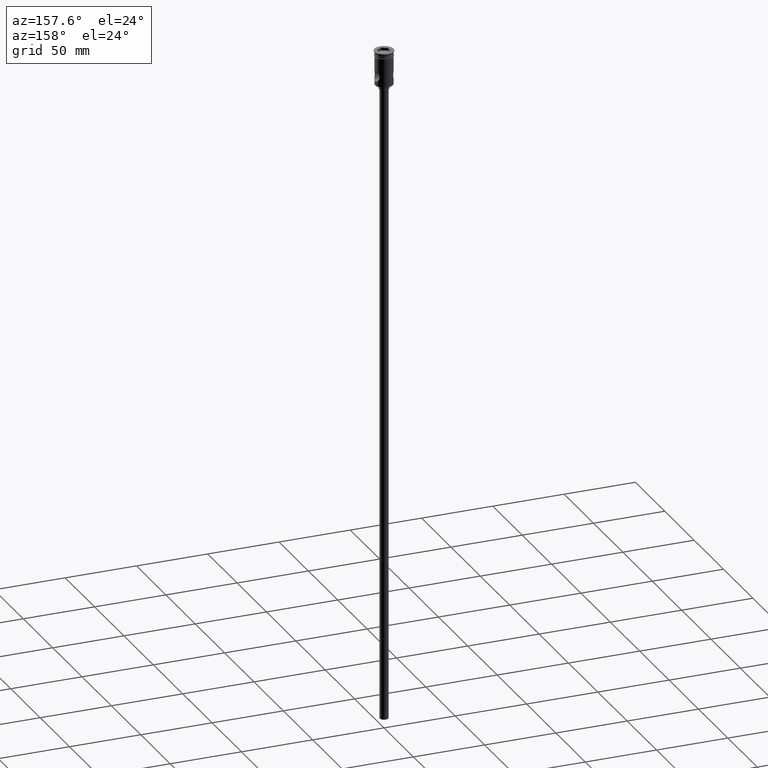
[diagram: clean part render]
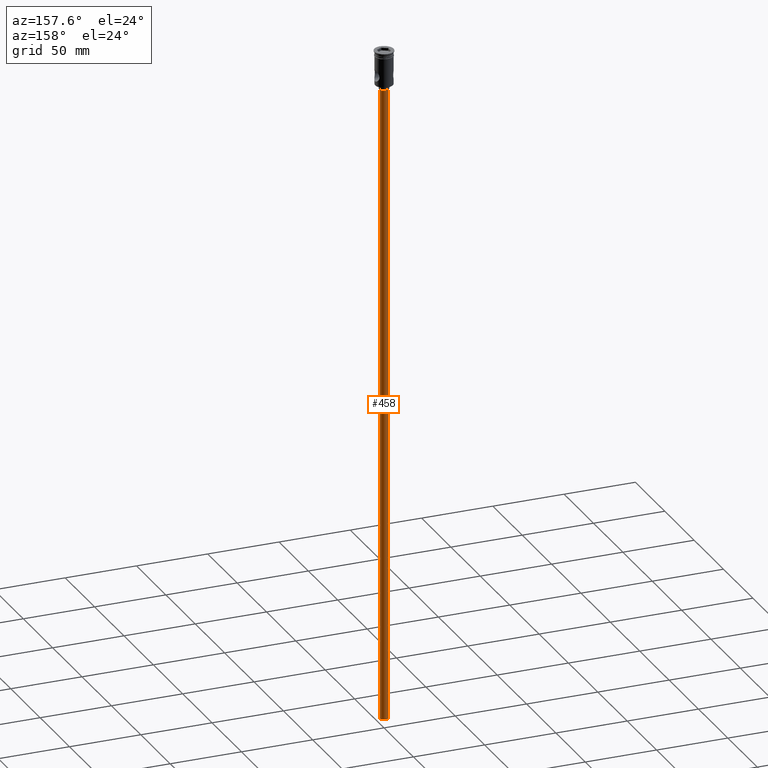
[diagram: same view with one face highlighted and labeled with its STEP entity id]
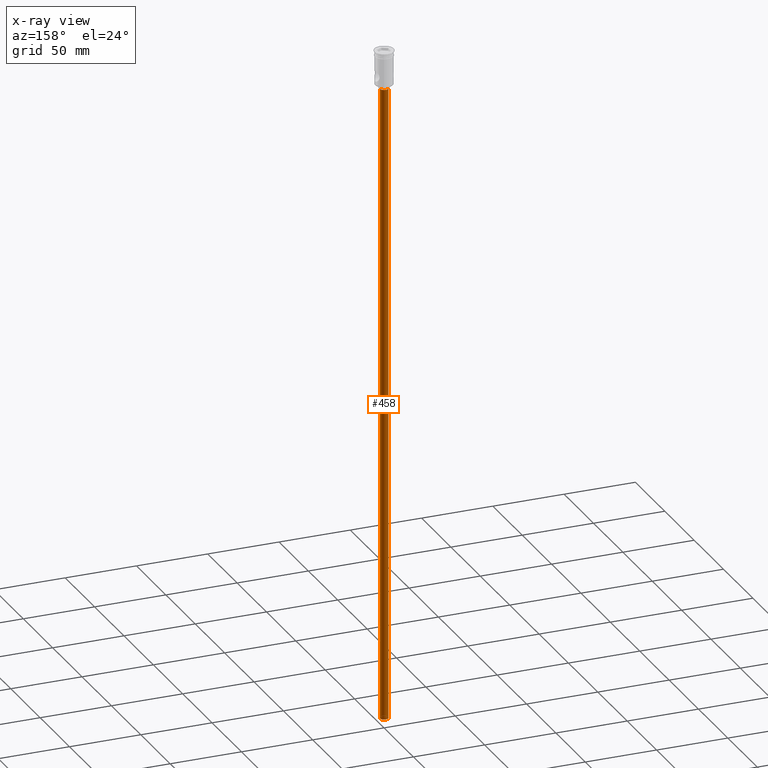
[diagram: x-ray of the same camera — body ghosted, the highlighted face saturated]
A machine part, auxiliary view. The second image highlights one B-rep face of the part: STEP entity #458.
The next image is the same camera in x-ray: the body ghosted, the highlighted face saturated — about 0% of this face is hidden behind the body in this view.
In plain terms, the highlighted cylindrical surface (edge-blend (fillet) strip) has radius 3 mm, axis along (-0, -0, 1).
Its self-contained STEP definition (entity closure, byte-faithful):
#29 = DIRECTION ( 'NONE',  ( -0.000000000000000000, -0.000000000000000000, 1.000000000000000000 ) ) ;
#37 = VECTOR ( 'NONE', #29, 1000.000000000000000 ) ;
#48 = EDGE_LOOP ( 'NONE', ( #951, #339, #780, #646 ) ) ;
#93 = DIRECTION ( 'NONE',  ( -0.000000000000000000, -0.000000000000000000, 1.000000000000000000 ) ) ;
#108 = CARTESIAN_POINT ( 'NONE',  ( -3.000000000000000444, 3.673940397442060361E-16, -474.0000000000000568 ) ) ;
#117 = DIRECTION ( 'NONE',  ( 1.000000000000000000, 0.000000000000000000, 0.000000000000000000 ) ) ;
#135 = DIRECTION ( 'NONE',  ( 0.000000000000000000, 0.000000000000000000, -1.000000000000000000 ) ) ;
#146 = EDGE_CURVE ( 'NONE', #1099, #450, #473, .T. ) ;
#249 = CARTESIAN_POINT ( 'NONE',  ( 0.000000000000000000, 0.000000000000000000, -27.00000000000000000 ) ) ;
#313 = CARTESIAN_POINT ( 'NONE',  ( -3.000000000000000444, 3.673940397442060361E-16, -474.0000000000000568 ) ) ;
#339 = ORIENTED_EDGE ( 'NONE', *, *, #475, .T. ) ;
#364 = VERTEX_POINT ( 'NONE', #405 ) ;
#388 = CIRCLE ( 'NONE', #480, 3.000000000000000444 ) ;
#405 = CARTESIAN_POINT ( 'NONE',  ( -3.000000000000000444, 3.673940397442060361E-16, -27.00000000000000000 ) ) ;
#450 = VERTEX_POINT ( 'NONE', #1135 ) ;
#458 = ADVANCED_FACE ( 'NONE', ( #1240 ), #1017, .T. ) ;
#460 = CIRCLE ( 'NONE', #1244, 3.000000000000000444 ) ;
#473 = LINE ( 'NONE', #1274, #37 ) ;
#475 = EDGE_CURVE ( 'NONE', #1246, #364, #660, .T. ) ;
#480 = AXIS2_PLACEMENT_3D ( 'NONE', #1231, #1345, #786 ) ;
#536 = DIRECTION ( 'NONE',  ( -0.000000000000000000, -0.000000000000000000, 1.000000000000000000 ) ) ;
#583 = DIRECTION ( 'NONE',  ( -1.000000000000000000, 0.000000000000000000, 0.000000000000000000 ) ) ;
#646 = ORIENTED_EDGE ( 'NONE', *, *, #146, .F. ) ;
#660 = LINE ( 'NONE', #108, #967 ) ;
#780 = ORIENTED_EDGE ( 'NONE', *, *, #1425, .T. ) ;
#786 = DIRECTION ( 'NONE',  ( -1.000000000000000000, 0.000000000000000000, 0.000000000000000000 ) ) ;
#951 = ORIENTED_EDGE ( 'NONE', *, *, #1171, .F. ) ;
#967 = VECTOR ( 'NONE', #93, 1000.000000000000000 ) ;
#1017 = CYLINDRICAL_SURFACE ( 'NONE', #1308, 3.000000000000000444 ) ;
#1024 = CARTESIAN_POINT ( 'NONE',  ( 0.000000000000000000, 0.000000000000000000, -474.0000000000000568 ) ) ;
#1099 = VERTEX_POINT ( 'NONE', #1186 ) ;
#1135 = CARTESIAN_POINT ( 'NONE',  ( 3.000000000000000444, 0.000000000000000000, -27.00000000000000000 ) ) ;
#1171 = EDGE_CURVE ( 'NONE', #1246, #1099, #388, .T. ) ;
#1186 = CARTESIAN_POINT ( 'NONE',  ( 3.000000000000000444, 0.000000000000000000, -474.0000000000000568 ) ) ;
#1231 = CARTESIAN_POINT ( 'NONE',  ( 0.000000000000000000, 0.000000000000000000, -474.0000000000000568 ) ) ;
#1240 = FACE_OUTER_BOUND ( 'NONE', #48, .T. ) ;
#1244 = AXIS2_PLACEMENT_3D ( 'NONE', #249, #135, #583 ) ;
#1246 = VERTEX_POINT ( 'NONE', #313 ) ;
#1274 = CARTESIAN_POINT ( 'NONE',  ( 3.000000000000000444, 0.000000000000000000, -474.0000000000000568 ) ) ;
#1308 = AXIS2_PLACEMENT_3D ( 'NONE', #1024, #536, #117 ) ;
#1345 = DIRECTION ( 'NONE',  ( 0.000000000000000000, 0.000000000000000000, -1.000000000000000000 ) ) ;
#1425 = EDGE_CURVE ( 'NONE', #364, #450, #460, .T. ) ;